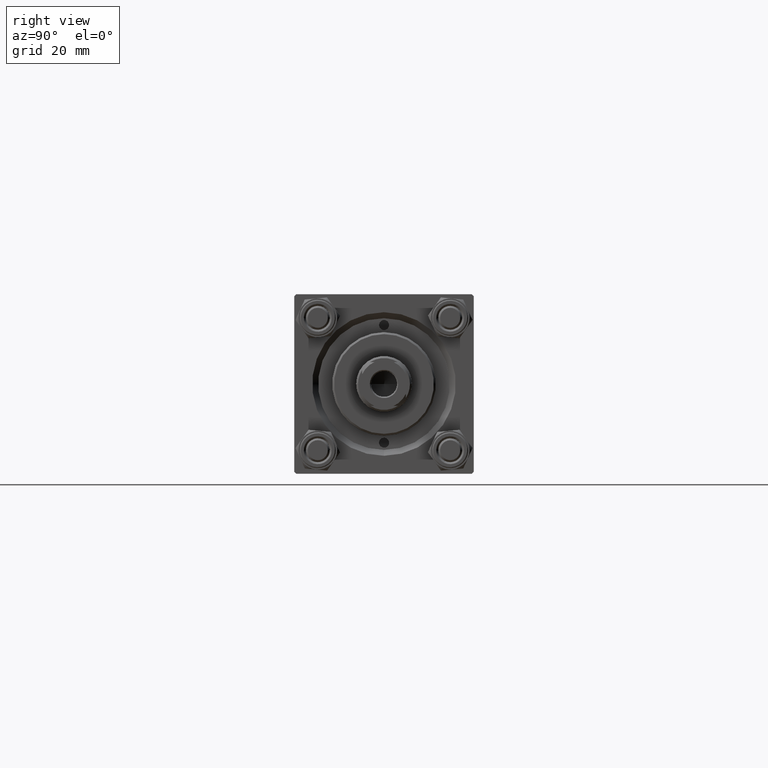
[diagram: clean part render]
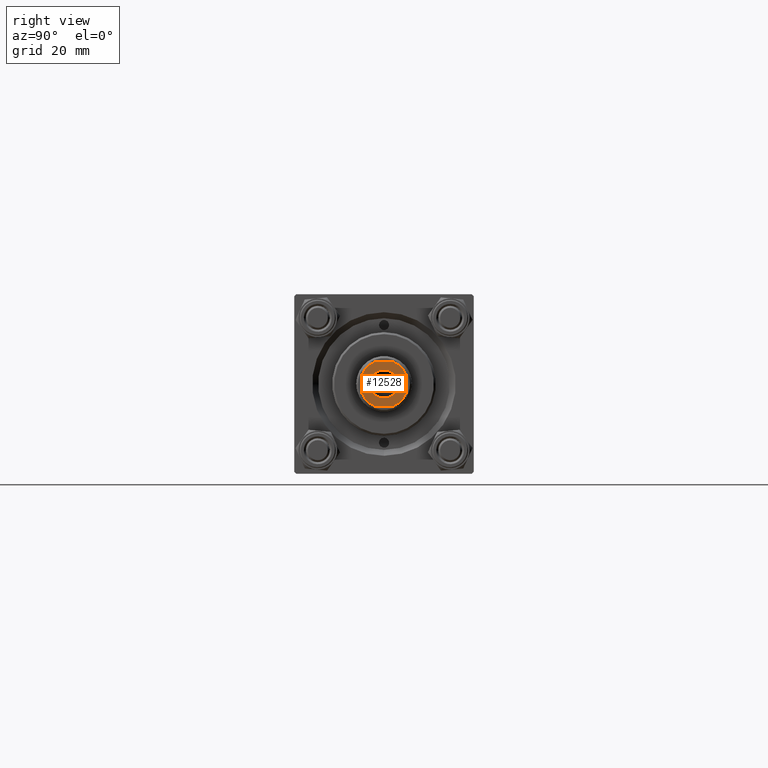
[diagram: same view with one face highlighted and labeled with its STEP entity id]
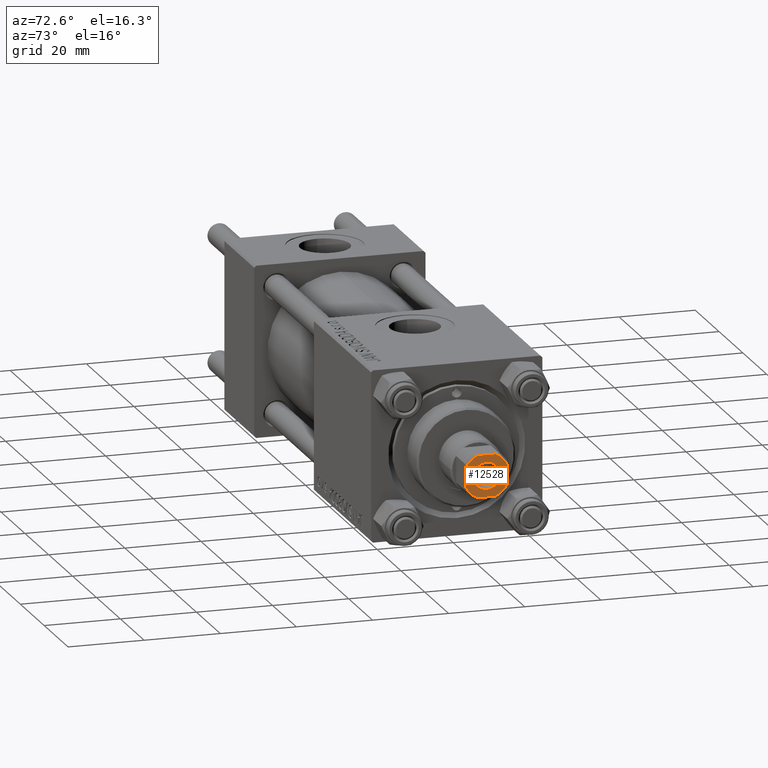
[diagram: same view with one face highlighted and labeled with its STEP entity id]
A machine part, right view. The second image highlights one B-rep face of the part: STEP entity #12528.
A second angle (auxiliary view) of the same face is appended — the face is thin or edge-on in the first view.
In plain terms, the highlighted planar face has unit normal (1, 0, -0).
Its self-contained STEP definition (entity closure, byte-faithful):
#399 = DIRECTION ( 'NONE',  ( 0.000000000000000000, -0.000000000000000000, -1.000000000000000000 ) ) ;
#885 = ORIENTED_EDGE ( 'NONE', *, *, #21383, .T. ) ;
#1401 = VERTEX_POINT ( 'NONE', #39132 ) ;
#1433 = DIRECTION ( 'NONE',  ( 1.577021341797097560E-16, -1.000000000000000000, 0.000000000000000000 ) ) ;
#1471 = CARTESIAN_POINT ( 'NONE',  ( -2.397915761656381761, -5.500000000000000000, 123.0000000000000000 ) ) ;
#2196 = EDGE_CURVE ( 'NONE', #21903, #38094, #37489, .T. ) ;
#2415 = AXIS2_PLACEMENT_3D ( 'NONE', #19625, #399, #46693 ) ;
#4399 = DIRECTION ( 'NONE',  ( 1.000000000000000000, 0.000000000000000000, 0.000000000000000000 ) ) ;
#6069 = PLANE ( 'NONE',  #48546 ) ;
#7066 = CARTESIAN_POINT ( 'NONE',  ( 2.397915761656340017, 5.500000000000000888, 123.0000000000000000 ) ) ;
#8542 = ORIENTED_EDGE ( 'NONE', *, *, #24511, .T. ) ;
#9192 = ORIENTED_EDGE ( 'NONE', *, *, #46335, .T. ) ;
#9233 = CIRCLE ( 'NONE', #14911, 3.550000000000011813 ) ;
#9597 = VERTEX_POINT ( 'NONE', #42227 ) ;
#10111 = AXIS2_PLACEMENT_3D ( 'NONE', #40674, #29558, #21697 ) ;
#10510 = VERTEX_POINT ( 'NONE', #7066 ) ;
#10939 = EDGE_CURVE ( 'NONE', #38614, #1401, #24242, .T. ) ;
#11436 = CARTESIAN_POINT ( 'NONE',  ( -5.500000000000000000, 2.397915761656292499, 123.0000000000000000 ) ) ;
#12212 = FACE_OUTER_BOUND ( 'NONE', #34037, .T. ) ;
#12494 = CARTESIAN_POINT ( 'NONE',  ( 0.000000000000000000, 0.000000000000000000, 123.0000000000000000 ) ) ;
#12528 = ADVANCED_FACE ( 'NONE', ( #40740, #12212 ), #6069, .T. ) ;
#12859 = DIRECTION ( 'NONE',  ( -1.577021341797097560E-16, 1.000000000000000000, -0.000000000000000000 ) ) ;
#13242 = CARTESIAN_POINT ( 'NONE',  ( -5.500000000000000000, -2.397915761656382649, 123.0000000000000000 ) ) ;
#13244 = AXIS2_PLACEMENT_3D ( 'NONE', #12494, #34553, #4399 ) ;
#13784 = VERTEX_POINT ( 'NONE', #39489 ) ;
#14444 = CARTESIAN_POINT ( 'NONE',  ( -5.499999999999999112, -5.500000000000000000, 123.0000000000000000 ) ) ;
#14911 = AXIS2_PLACEMENT_3D ( 'NONE', #46669, #40535, #15799 ) ;
#15550 = EDGE_CURVE ( 'NONE', #35138, #10510, #49353, .T. ) ;
#15799 = DIRECTION ( 'NONE',  ( 1.000000000000000000, 0.000000000000000000, 0.000000000000000000 ) ) ;
#16442 = EDGE_LOOP ( 'NONE', ( #25251, #25905 ) ) ;
#16509 = ORIENTED_EDGE ( 'NONE', *, *, #15550, .T. ) ;
#18636 = VECTOR ( 'NONE', #1433, 1000.000000000000000 ) ;
#19217 = CARTESIAN_POINT ( 'NONE',  ( 0.000000000000000000, 0.000000000000000000, 123.0000000000000000 ) ) ;
#19625 = CARTESIAN_POINT ( 'NONE',  ( 0.000000000000000000, 0.000000000000000000, 123.0000000000000000 ) ) ;
#20821 = DIRECTION ( 'NONE',  ( -0.000000000000000000, 0.000000000000000000, 1.000000000000000000 ) ) ;
#21289 = LINE ( 'NONE', #47860, #27001 ) ;
#21295 = DIRECTION ( 'NONE',  ( 1.000000000000000000, 0.000000000000000000, 0.000000000000000000 ) ) ;
#21383 = EDGE_CURVE ( 'NONE', #13784, #23430, #47891, .T. ) ;
#21410 = CARTESIAN_POINT ( 'NONE',  ( 5.500000000000000000, 2.397915761656341793, 123.0000000000000000 ) ) ;
#21697 = DIRECTION ( 'NONE',  ( 1.000000000000000000, 0.000000000000000000, 0.000000000000000000 ) ) ;
#21903 = VERTEX_POINT ( 'NONE', #1471 ) ;
#23274 = DIRECTION ( 'NONE',  ( -0.000000000000000000, 0.000000000000000000, 1.000000000000000000 ) ) ;
#23430 = VERTEX_POINT ( 'NONE', #11436 ) ;
#23760 = EDGE_CURVE ( 'NONE', #9597, #35138, #28082, .T. ) ;
#23966 = EDGE_CURVE ( 'NONE', #38094, #9597, #28620, .T. ) ;
#24242 = CIRCLE ( 'NONE', #2415, 3.550000000000011813 ) ;
#24511 = EDGE_CURVE ( 'NONE', #10510, #13784, #21289, .T. ) ;
#24720 = CARTESIAN_POINT ( 'NONE',  ( -5.500000000000000888, 5.500000000000000000, 123.0000000000000000 ) ) ;
#25251 = ORIENTED_EDGE ( 'NONE', *, *, #25372, .T. ) ;
#25372 = EDGE_CURVE ( 'NONE', #1401, #38614, #9233, .T. ) ;
#25905 = ORIENTED_EDGE ( 'NONE', *, *, #10939, .T. ) ;
#25960 = AXIS2_PLACEMENT_3D ( 'NONE', #19217, #23274, #34669 ) ;
#26171 = ORIENTED_EDGE ( 'NONE', *, *, #2196, .T. ) ;
#27001 = VECTOR ( 'NONE', #48108, 1000.000000000000000 ) ;
#28082 = LINE ( 'NONE', #31862, #47194 ) ;
#28620 = CIRCLE ( 'NONE', #13244, 6.000000000000008882 ) ;
#29316 = AXIS2_PLACEMENT_3D ( 'NONE', #32214, #20821, #33226 ) ;
#29558 = DIRECTION ( 'NONE',  ( -0.000000000000000000, 0.000000000000000000, 1.000000000000000000 ) ) ;
#30843 = VERTEX_POINT ( 'NONE', #13242 ) ;
#31862 = CARTESIAN_POINT ( 'NONE',  ( 5.499999999999999112, 5.500000000000000888, 123.0000000000000000 ) ) ;
#32214 = CARTESIAN_POINT ( 'NONE',  ( 0.000000000000000000, 0.000000000000000000, 123.0000000000000000 ) ) ;
#32747 = CARTESIAN_POINT ( 'NONE',  ( 2.397915761656381761, -5.500000000000000000, 123.0000000000000000 ) ) ;
#33226 = DIRECTION ( 'NONE',  ( 1.000000000000000000, 0.000000000000000000, 0.000000000000000000 ) ) ;
#33879 = CARTESIAN_POINT ( 'NONE',  ( -3.550000000000011813, 4.347496136973118171E-16, 123.0000000000000000 ) ) ;
#34037 = EDGE_LOOP ( 'NONE', ( #46751, #16509, #8542, #885, #45897, #9192, #26171, #34404 ) ) ;
#34404 = ORIENTED_EDGE ( 'NONE', *, *, #23966, .T. ) ;
#34553 = DIRECTION ( 'NONE',  ( -0.000000000000000000, 0.000000000000000000, 1.000000000000000000 ) ) ;
#34669 = DIRECTION ( 'NONE',  ( 1.000000000000000000, 0.000000000000000000, 0.000000000000000000 ) ) ;
#35138 = VERTEX_POINT ( 'NONE', #21410 ) ;
#35813 = EDGE_CURVE ( 'NONE', #23430, #30843, #36109, .T. ) ;
#36109 = LINE ( 'NONE', #24720, #18636 ) ;
#36948 = DIRECTION ( 'NONE',  ( -0.000000000000000000, 0.000000000000000000, 1.000000000000000000 ) ) ;
#37489 = LINE ( 'NONE', #14444, #40136 ) ;
#38094 = VERTEX_POINT ( 'NONE', #32747 ) ;
#38614 = VERTEX_POINT ( 'NONE', #33879 ) ;
#39132 = CARTESIAN_POINT ( 'NONE',  ( 3.550000000000011813, 0.000000000000000000, 123.0000000000000000 ) ) ;
#39489 = CARTESIAN_POINT ( 'NONE',  ( -2.397915761656291167, 5.500000000000000888, 123.0000000000000000 ) ) ;
#40136 = VECTOR ( 'NONE', #21295, 1000.000000000000000 ) ;
#40535 = DIRECTION ( 'NONE',  ( 0.000000000000000000, -0.000000000000000000, -1.000000000000000000 ) ) ;
#40674 = CARTESIAN_POINT ( 'NONE',  ( 0.000000000000000000, 0.000000000000000000, 123.0000000000000000 ) ) ;
#40740 = FACE_BOUND ( 'NONE', #16442, .T. ) ;
#42227 = CARTESIAN_POINT ( 'NONE',  ( 5.500000000000000000, -2.397915761656381761, 123.0000000000000000 ) ) ;
#43094 = CARTESIAN_POINT ( 'NONE',  ( 0.000000000000000000, 0.000000000000000000, 123.0000000000000000 ) ) ;
#44518 = DIRECTION ( 'NONE',  ( 1.000000000000000000, 0.000000000000000000, 0.000000000000000000 ) ) ;
#45670 = CIRCLE ( 'NONE', #10111, 6.000000000000008882 ) ;
#45897 = ORIENTED_EDGE ( 'NONE', *, *, #35813, .T. ) ;
#46335 = EDGE_CURVE ( 'NONE', #30843, #21903, #45670, .T. ) ;
#46669 = CARTESIAN_POINT ( 'NONE',  ( 0.000000000000000000, 0.000000000000000000, 123.0000000000000000 ) ) ;
#46693 = DIRECTION ( 'NONE',  ( 1.000000000000000000, 0.000000000000000000, 0.000000000000000000 ) ) ;
#46751 = ORIENTED_EDGE ( 'NONE', *, *, #23760, .T. ) ;
#47194 = VECTOR ( 'NONE', #12859, 1000.000000000000000 ) ;
#47860 = CARTESIAN_POINT ( 'NONE',  ( -5.500000000000000888, 5.500000000000000000, 123.0000000000000000 ) ) ;
#47891 = CIRCLE ( 'NONE', #29316, 5.999999999999973355 ) ;
#48108 = DIRECTION ( 'NONE',  ( -1.000000000000000000, -7.885106708985487801E-17, -0.000000000000000000 ) ) ;
#48546 = AXIS2_PLACEMENT_3D ( 'NONE', #43094, #36948, #44518 ) ;
#49353 = CIRCLE ( 'NONE', #25960, 5.999999999999992006 ) ;